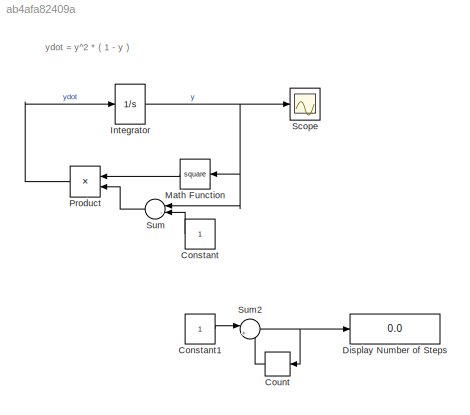
MODEL slx_ab4afa82409a
KIND model
CONFIG AbsTol = auto
CONFIG EnableMultiTasking = on
CONFIG FixedStep = 100
CONFIG MaxStep = auto
CONFIG MinStep = auto
CONFIG RelTol = 1e-3
CONFIG SampleTimeConstraint = Unconstrained
CONFIG Solver = ode45
CONFIG SolverName = ode45
CONFIG StartFcn = cput=cputime;
CONFIG StartTime = 0.0
CONFIG StopFcn = disp('CPU Time Elapsed:');cputime-cput
CONFIG StopTime = 2e4
BLOCK [Constant] Constant
BLOCK [Constant] Constant1
BLOCK [Memory] Count
BLOCK [Display] Display Number of Steps
  Decimation = 1
  Ports = [1]
BLOCK [Integrator] Integrator
  InitialCondition = 1e-4
  Ports = [1, 1]
BLOCK [Math] Math Function
  Operator = square
  Ports = [1, 1]
BLOCK [Product] Product
  Ports = [2, 1]
BLOCK [Scope] Scope
  Floating = off
  NumInputPorts = 1
  Ports = [1]
  ScopeSpecificationString = Simulink.scopes.TimeScopeBlockCfg('CurrentConfiguration', extmgr.ConfigurationSet(extmgr.Configuration('Core','General UI',true),extmgr.Configuration('Core','Source UI',true),extmgr.Configuration('Sources','WiredSimulink',true,'DataLoggingSaveFormat','StructureWithTime','DataLoggingLimitDataPoints',true,'DataLoggingDecimation','1','DataLoggingDecimateData',true),extmgr.Configuration('Visuals','Tim...<+1830ch>
BLOCK [Sum] Sum
  IconShape = round
  Inputs = |-+
  Ports = [2, 1]
BLOCK [Sum] Sum2
  IconShape = round
  Inputs = |++
  Ports = [2, 1]
ANNOTATION (root): ydot = y^2 * ( 1 - y )
LINE Constant1:1 -> Sum2:1
LINE Constant:1 -> Sum:2
LINE Count:1 -> Sum2:2
NET Integrator:1 -> Math Function:1, Scope:1, Sum:1
LINE Math Function:1 -> Product:1
LINE Product:1 -> Integrator:1
NET Sum2:1 -> Count:1, Display Number of Steps:1
LINE Sum:1 -> Product:2
note: NET lines group one-source signal fan-out (src -> all destinations, sorted); 1:1 wires keep LINE
